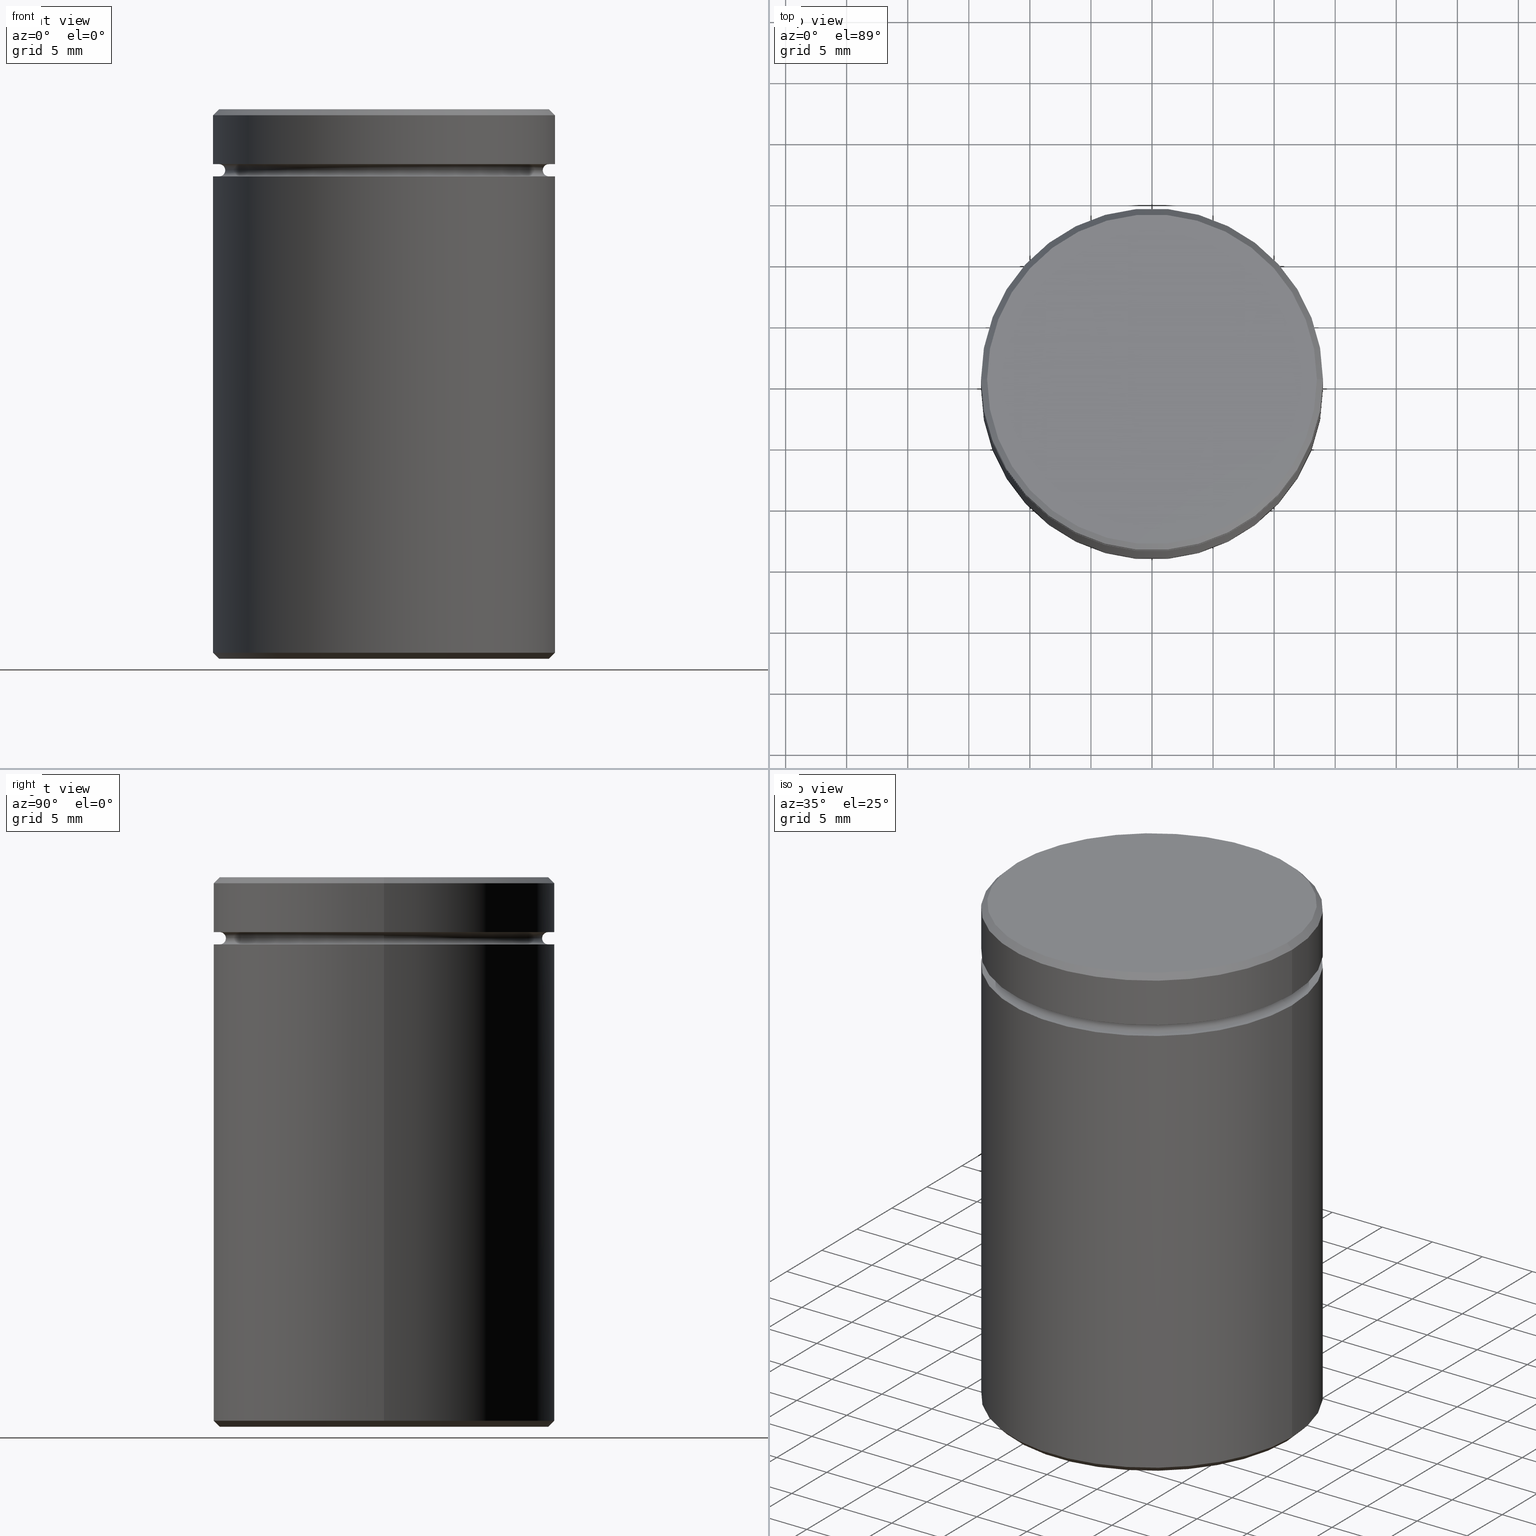
[diagram: canonical four-view strip — front | top / right | iso, engineering-drawing reading convention]
A machine part, canonical four-view strip (front | top / right | iso — engineering-drawing reading convention). The complete STEP part file that produces these views, byte-faithful:
ISO-10303-21;
HEADER;
FILE_DESCRIPTION (( 'STEP AP203' ),
    '1' );
FILE_NAME ('19c1.STEP',
    '2024-01-02T19:36:52',
    ( '' ),
    ( '' ),
    'SwSTEP 2.0',
    'SolidWorks 2019',
    '' );
FILE_SCHEMA (( 'CONFIG_CONTROL_DESIGN' ));
ENDSEC;

DATA;
#1 = CIRCLE ( 'NONE', #318, 14.00000000000000000 ) ;
#2 = TOROIDAL_SURFACE ( 'NONE', #494, 13.50000000000000178, 0.5000000000000000000 ) ;
#3 = CYLINDRICAL_SURFACE ( 'NONE', #127, 14.00000000000000000 ) ;
#4 =( NAMED_UNIT ( * ) PLANE_ANGLE_UNIT ( ) SI_UNIT ( $, .RADIAN. ) );
#5 = CARTESIAN_POINT ( 'NONE',  ( 0.000000000000000000, 0.000000000000000000, 0.000000000000000000 ) ) ;
#6 = EDGE_CURVE ( 'NONE', #114, #529, #120, .T. ) ;
#7 = DIRECTION ( 'NONE',  ( 1.000000000000000000, 0.000000000000000000, 0.000000000000000000 ) ) ;
#8 = ORIENTED_EDGE ( 'NONE', *, *, #394, .T. ) ;
#9 = FACE_OUTER_BOUND ( 'NONE', #364, .T. ) ;
#10 = CIRCLE ( 'NONE', #459, 8.500000000000000000 ) ;
#11 = DIRECTION ( 'NONE',  ( -0.000000000000000000, -0.000000000000000000, 1.000000000000000000 ) ) ;
#12 = CARTESIAN_POINT ( 'NONE',  ( 0.000000000000000000, 0.000000000000000000, -4.500000000000000888 ) ) ;
#13 = DIRECTION ( 'NONE',  ( -1.000000000000000000, 0.000000000000000000, 0.000000000000000000 ) ) ;
#14 = EDGE_CURVE ( 'NONE', #323, #557, #241, .T. ) ;
#15 =( NAMED_UNIT ( * ) SI_UNIT ( $, .STERADIAN. ) SOLID_ANGLE_UNIT ( ) );
#16 = ORIENTED_EDGE ( 'NONE', *, *, #46, .T. ) ;
#17 = PLANE ( 'NONE',  #395 ) ;
#18 = APPLICATION_CONTEXT ( 'configuration controlled 3d designs of mechanical parts and assemblies' ) ;
#19 = CIRCLE ( 'NONE', #294, 14.00000000000000000 ) ;
#20 = ORIENTED_EDGE ( 'NONE', *, *, #73, .F. ) ;
#21 = APPROVAL_ROLE ( '' ) ;
#22 = DIRECTION ( 'NONE',  ( 1.000000000000000000, 0.000000000000000000, 0.000000000000000000 ) ) ;
#23 = ORIENTED_EDGE ( 'NONE', *, *, #126, .T. ) ;
#24 = APPROVAL_ROLE ( '' ) ;
#25 = CARTESIAN_POINT ( 'NONE',  ( 0.000000000000000000, 0.000000000000000000, -44.49999999999999289 ) ) ;
#26 = VERTEX_POINT ( 'NONE', #381 ) ;
#27 = CARTESIAN_POINT ( 'NONE',  ( 0.000000000000000000, 0.000000000000000000, -15.99999999999999645 ) ) ;
#28 = CIRCLE ( 'NONE', #181, 13.50000000000000178 ) ;
#29 = CALENDAR_DATE ( 2024, 2, 1 ) ;
#30 = DIRECTION ( 'NONE',  ( 0.000000000000000000, 0.000000000000000000, -1.000000000000000000 ) ) ;
#31 = EDGE_LOOP ( 'NONE', ( #62, #175, #273, #344 ) ) ;
#32 = CARTESIAN_POINT ( 'NONE',  ( 14.00000000000000000, 0.000000000000000000, -5.500000000000000000 ) ) ;
#33 = PRODUCT_RELATED_PRODUCT_CATEGORY ( 'detail', '', ( #519 ) ) ;
#34 = AXIS2_PLACEMENT_3D ( 'NONE', #281, #92, #266 ) ;
#35 = VECTOR ( 'NONE', #486, 1000.000000000000000 ) ;
#36 = EDGE_CURVE ( 'NONE', #141, #133, #65, .T. ) ;
#37 = DIRECTION ( 'NONE',  ( 1.000000000000000000, 0.000000000000000000, 0.000000000000000000 ) ) ;
#38 = CARTESIAN_POINT ( 'NONE',  ( 0.000000000000000000, 0.000000000000000000, -15.99999999999999645 ) ) ;
#39 = CARTESIAN_POINT ( 'NONE',  ( 0.000000000000000000, 0.000000000000000000, -45.00000000000000000 ) ) ;
#40 = CALENDAR_DATE ( 2024, 2, 1 ) ;
#41 = ORIENTED_EDGE ( 'NONE', *, *, #126, .F. ) ;
#42 = AXIS2_PLACEMENT_3D ( 'NONE', #27, #336, #167 ) ;
#43 = LOCAL_TIME ( 20, 36, 52.00000000000000000, #102 ) ;
#44 = DIRECTION ( 'NONE',  ( 1.000000000000000000, 0.000000000000000000, 0.000000000000000000 ) ) ;
#45 = ORIENTED_EDGE ( 'NONE', *, *, #328, .T. ) ;
#46 = EDGE_CURVE ( 'NONE', #91, #269, #53, .T. ) ;
#47 = LINE ( 'NONE', #271, #470 ) ;
#48 = DIRECTION ( 'NONE',  ( -0.000000000000000000, -0.000000000000000000, 1.000000000000000000 ) ) ;
#49 = VERTEX_POINT ( 'NONE', #535 ) ;
#50 = APPROVAL ( #466, 'NEUR�EN�' ) ;
#51 = FACE_OUTER_BOUND ( 'NONE', #442, .T. ) ;
#52 = DIRECTION ( 'NONE',  ( -1.000000000000000000, 0.000000000000000000, 0.000000000000000000 ) ) ;
#53 = CIRCLE ( 'NONE', #306, 14.00000000000000000 ) ;
#54 = CIRCLE ( 'NONE', #319, 13.49999999999999467 ) ;
#55 = CARTESIAN_POINT ( 'NONE',  ( 0.000000000000000000, 0.000000000000000000, -5.500000000000000000 ) ) ;
#56 = EDGE_CURVE ( 'NONE', #533, #409, #376, .T. ) ;
#57 = FACE_OUTER_BOUND ( 'NONE', #174, .T. ) ;
#58 = ORIENTED_EDGE ( 'NONE', *, *, #198, .T. ) ;
#59 = DIRECTION ( 'NONE',  ( -1.000000000000000000, 0.000000000000000000, 0.000000000000000000 ) ) ;
#60 = VERTEX_POINT ( 'NONE', #485 ) ;
#61 = DIRECTION ( 'NONE',  ( -0.000000000000000000, -0.000000000000000000, 1.000000000000000000 ) ) ;
#62 = ORIENTED_EDGE ( 'NONE', *, *, #6, .F. ) ;
#63 = APPROVAL_STATUS ( 'not_yet_approved' ) ;
#64 = CARTESIAN_POINT ( 'NONE',  ( 0.000000000000000000, 0.000000000000000000, -4.500000000000000888 ) ) ;
#65 = CIRCLE ( 'NONE', #543, 14.00000000000000000 ) ;
#66 = ORIENTED_EDGE ( 'NONE', *, *, #207, .F. ) ;
#67 = CC_DESIGN_APPROVAL ( #50, ( #259 ) ) ;
#68 = CARTESIAN_POINT ( 'NONE',  ( 0.000000000000000000, 0.000000000000000000, -0.5000000000000022204 ) ) ;
#69 = ORIENTED_EDGE ( 'NONE', *, *, #116, .T. ) ;
#70 = PERSON_AND_ORGANIZATION ( #77, #242 ) ;
#71 = CARTESIAN_POINT ( 'NONE',  ( -14.00000000000000000, 1.714505518806294638E-15, 0.000000000000000000 ) ) ;
#72 = FACE_OUTER_BOUND ( 'NONE', #540, .T. ) ;
#73 = EDGE_CURVE ( 'NONE', #323, #114, #523, .T. ) ;
#74 = CIRCLE ( 'NONE', #369, 8.500000000000000000 ) ;
#75 = ORIENTED_EDGE ( 'NONE', *, *, #198, .F. ) ;
#76 = CARTESIAN_POINT ( 'NONE',  ( -13.50000000000000178, 0.000000000000000000, -5.000000000000000888 ) ) ;
#77 = PERSON ( 'NEUR�EN�', 'NEUR�EN�', 'NEUR�EN�', ('NEUR�EN�'), ('NEUR�EN�'), ('NEUR�EN�') ) ;
#78 = FACE_OUTER_BOUND ( 'NONE', #353, .T. ) ;
#79 = DIRECTION ( 'NONE',  ( 1.000000000000000000, 0.000000000000000000, 0.000000000000000000 ) ) ;
#80 = AXIS2_PLACEMENT_3D ( 'NONE', #390, #490, #44 ) ;
#81 = VECTOR ( 'NONE', #115, 1000.000000000000000 ) ;
#82 = LOCAL_TIME ( 20, 36, 52.00000000000000000, #201 ) ;
#83 = LINE ( 'NONE', #254, #156 ) ;
#84 = DIRECTION ( 'NONE',  ( -1.000000000000000000, 0.000000000000000000, 0.000000000000000000 ) ) ;
#85 = DIRECTION ( 'NONE',  ( -1.000000000000000000, 0.000000000000000000, 0.000000000000000000 ) ) ;
#86 = EDGE_LOOP ( 'NONE', ( #66, #263 ) ) ;
#87 = EDGE_CURVE ( 'NONE', #411, #557, #368, .T. ) ;
#88 = DIRECTION ( 'NONE',  ( -0.000000000000000000, -0.000000000000000000, 1.000000000000000000 ) ) ;
#89 = AXIS2_PLACEMENT_3D ( 'NONE', #55, #487, #7 ) ;
#90 = CARTESIAN_POINT ( 'NONE',  ( -13.50000000000000178, 0.000000000000000000, -4.500000000000000888 ) ) ;
#91 = VERTEX_POINT ( 'NONE', #303 ) ;
#92 = DIRECTION ( 'NONE',  ( -0.000000000000000000, -0.000000000000000000, -1.000000000000000000 ) ) ;
#93 = DIRECTION ( 'NONE',  ( 1.000000000000000000, 0.000000000000000000, 0.000000000000000000 ) ) ;
#94 = ORIENTED_EDGE ( 'NONE', *, *, #410, .T. ) ;
#95 = CARTESIAN_POINT ( 'NONE',  ( 0.000000000000000000, 0.000000000000000000, -4.999999999999999112 ) ) ;
#96 = CARTESIAN_POINT ( 'NONE',  ( 13.49999999999999467, 0.000000000000000000, -45.00000000000000000 ) ) ;
#97 = ORIENTED_EDGE ( 'NONE', *, *, #379, .F. ) ;
#98 = CARTESIAN_POINT ( 'NONE',  ( -8.500000000000000000, 0.000000000000000000, -15.99999999999999645 ) ) ;
#99 = AXIS2_PLACEMENT_3D ( 'NONE', #234, #357, #325 ) ;
#100 = DIRECTION ( 'NONE',  ( 1.000000000000000000, 0.000000000000000000, 0.000000000000000000 ) ) ;
#101 = DIRECTION ( 'NONE',  ( 0.000000000000000000, -1.000000000000000000, 0.000000000000000000 ) ) ;
#102 = COORDINATED_UNIVERSAL_TIME_OFFSET ( 1, 0, .AHEAD. ) ;
#103 = CYLINDRICAL_SURFACE ( 'NONE', #146, 14.00000000000000000 ) ;
#104 = ORIENTED_EDGE ( 'NONE', *, *, #315, .F. ) ;
#105 = DIRECTION ( 'NONE',  ( 1.000000000000000000, 0.000000000000000000, 0.000000000000000000 ) ) ;
#106 = EDGE_CURVE ( 'NONE', #496, #49, #47, .T. ) ;
#107 = FACE_OUTER_BOUND ( 'NONE', #213, .T. ) ;
#108 = AXIS2_PLACEMENT_3D ( 'NONE', #517, #477, #84 ) ;
#109 = EDGE_LOOP ( 'NONE', ( #223, #16, #356, #458 ) ) ;
#110 = CIRCLE ( 'NONE', #276, 14.00000000000000000 ) ;
#111 = DATE_AND_TIME ( #553, #564 ) ;
#112 = DIRECTION ( 'NONE',  ( -1.000000000000000000, 0.000000000000000000, 0.000000000000000000 ) ) ;
#113 = EDGE_LOOP ( 'NONE', ( #299, #392, #75, #97 ) ) ;
#114 = VERTEX_POINT ( 'NONE', #225 ) ;
#115 = DIRECTION ( 'NONE',  ( -0.000000000000000000, -0.000000000000000000, 1.000000000000000000 ) ) ;
#116 = EDGE_CURVE ( 'NONE', #133, #49, #526, .T. ) ;
#117 = ORIENTED_EDGE ( 'NONE', *, *, #474, .T. ) ;
#118 = APPLICATION_PROTOCOL_DEFINITION ( 'international standard', 'config_control_design', 1994, #426 ) ;
#119 = DIRECTION ( 'NONE',  ( 1.000000000000000000, 0.000000000000000000, 0.000000000000000000 ) ) ;
#120 = CIRCLE ( 'NONE', #330, 0.5000000000000004441 ) ;
#121 = TOROIDAL_SURFACE ( 'NONE', #377, 13.50000000000000178, 0.5000000000000000000 ) ;
#122 = APPROVAL_PERSON_ORGANIZATION ( #157, #349, #24 ) ;
#123 = DIRECTION ( 'NONE',  ( -0.000000000000000000, -0.000000000000000000, 1.000000000000000000 ) ) ;
#124 = CARTESIAN_POINT ( 'NONE',  ( 0.000000000000000000, 0.000000000000000000, -4.500000000000000888 ) ) ;
#125 = DIRECTION ( 'NONE',  ( 0.000000000000000000, 0.000000000000000000, -1.000000000000000000 ) ) ;
#126 = EDGE_CURVE ( 'NONE', #409, #533, #1, .T. ) ;
#127 = AXIS2_PLACEMENT_3D ( 'NONE', #183, #527, #140 ) ;
#128 = APPROVAL_PERSON_ORGANIZATION ( #455, #480, #21 ) ;
#129 = DIRECTION ( 'NONE',  ( -1.000000000000000000, -1.224646799147353454E-16, 0.000000000000000000 ) ) ;
#130 = DIRECTION ( 'NONE',  ( 1.000000000000000000, 0.000000000000000000, 0.000000000000000000 ) ) ;
#131 = CARTESIAN_POINT ( 'NONE',  ( 0.000000000000000000, 0.000000000000000000, -45.00000000000000000 ) ) ;
#132 = ADVANCED_FACE ( 'NONE', ( #440 ), #339, .F. ) ;
#133 = VERTEX_POINT ( 'NONE', #209 ) ;
#134 = DIRECTION ( 'NONE',  ( -1.000000000000000000, 0.000000000000000000, 0.000000000000000000 ) ) ;
#135 = EDGE_LOOP ( 'NONE', ( #23, #326 ) ) ;
#136 = CIRCLE ( 'NONE', #359, 14.00000000000000000 ) ;
#137 = DIRECTION ( 'NONE',  ( -0.000000000000000000, -0.000000000000000000, 1.000000000000000000 ) ) ;
#138 = EDGE_CURVE ( 'NONE', #552, #26, #436, .T. ) ;
#139 = CARTESIAN_POINT ( 'NONE',  ( 0.000000000000000000, 0.000000000000000000, -45.00000000000000000 ) ) ;
#140 = DIRECTION ( 'NONE',  ( 1.000000000000000000, 0.000000000000000000, 0.000000000000000000 ) ) ;
#141 = VERTEX_POINT ( 'NONE', #435 ) ;
#142 = FACE_BOUND ( 'NONE', #161, .T. ) ;
#143 = LINE ( 'NONE', #308, #35 ) ;
#144 = ORIENTED_EDGE ( 'NONE', *, *, #277, .T. ) ;
#145 = CARTESIAN_POINT ( 'NONE',  ( 0.000000000000000000, 0.000000000000000000, -44.49999999999999289 ) ) ;
#146 = AXIS2_PLACEMENT_3D ( 'NONE', #5, #419, #500 ) ;
#147 = AXIS2_PLACEMENT_3D ( 'NONE', #433, #123, #219 ) ;
#148 = ORIENTED_EDGE ( 'NONE', *, *, #106, .T. ) ;
#149 = FACE_OUTER_BOUND ( 'NONE', #508, .T. ) ;
#150 = ORIENTED_EDGE ( 'NONE', *, *, #307, .F. ) ;
#151 = ADVANCED_FACE ( 'NONE', ( #9 ), #262, .T. ) ;
#152 = CC_DESIGN_PERSON_AND_ORGANIZATION_ASSIGNMENT ( #70, #558, ( #287 ) ) ;
#153 = ORIENTED_EDGE ( 'NONE', *, *, #568, .T. ) ;
#154 = CARTESIAN_POINT ( 'NONE',  ( 0.000000000000000000, 0.000000000000000000, -0.5000000000000022204 ) ) ;
#155 = ORIENTED_EDGE ( 'NONE', *, *, #36, .F. ) ;
#156 = VECTOR ( 'NONE', #431, 1000.000000000000000 ) ;
#157 = PERSON_AND_ORGANIZATION ( #77, #242 ) ;
#158 = LOCAL_TIME ( 20, 36, 52.00000000000000000, #545 ) ;
#159 = FACE_OUTER_BOUND ( 'NONE', #109, .T. ) ;
#160 = ADVANCED_FACE ( 'NONE', ( #311 ), #495, .F. ) ;
#161 = EDGE_LOOP ( 'NONE', ( #348, #313 ) ) ;
#162 = SECURITY_CLASSIFICATION_LEVEL ( 'unclassified' ) ;
#163 = DIRECTION ( 'NONE',  ( -0.000000000000000000, -0.000000000000000000, 1.000000000000000000 ) ) ;
#164 = CC_DESIGN_DATE_AND_TIME_ASSIGNMENT ( #247, #423, ( #450 ) ) ;
#165 = DIRECTION ( 'NONE',  ( -1.000000000000000000, 1.224646799147353454E-16, 0.000000000000000000 ) ) ;
#166 = SHAPE_DEFINITION_REPRESENTATION ( #176, #283 ) ;
#167 = DIRECTION ( 'NONE',  ( -1.000000000000000000, 0.000000000000000000, 0.000000000000000000 ) ) ;
#168 = DIRECTION ( 'NONE',  ( 1.000000000000000000, 0.000000000000000000, 0.000000000000000000 ) ) ;
#169 = CONICAL_SURFACE ( 'NONE', #483, 13.50000000000000533, 0.7853981633974415066 ) ;
#170 =( GEOMETRIC_REPRESENTATION_CONTEXT ( 3 ) GLOBAL_UNCERTAINTY_ASSIGNED_CONTEXT ( ( #420 ) ) GLOBAL_UNIT_ASSIGNED_CONTEXT ( ( #358, #4, #15 ) ) REPRESENTATION_CONTEXT ( 'NONE', 'WORKASPACE' ) );
#171 = DIRECTION ( 'NONE',  ( 0.000000000000000000, -0.000000000000000000, 1.000000000000000000 ) ) ;
#172 = EDGE_CURVE ( 'NONE', #114, #411, #208, .T. ) ;
#173 = CARTESIAN_POINT ( 'NONE',  ( 0.000000000000000000, 14.00000000000000000, -45.00000000000000000 ) ) ;
#174 = EDGE_LOOP ( 'NONE', ( #20, #194, #210, #537 ) ) ;
#175 = ORIENTED_EDGE ( 'NONE', *, *, #290, .T. ) ;
#176 = PRODUCT_DEFINITION_SHAPE ( 'NONE', 'NONE',  #259 ) ;
#177 = CC_DESIGN_DATE_AND_TIME_ASSIGNMENT ( #371, #240, ( #259 ) ) ;
#178 = FACE_OUTER_BOUND ( 'NONE', #314, .T. ) ;
#179 = CARTESIAN_POINT ( 'NONE',  ( 0.000000000000000000, 0.000000000000000000, -44.49999999999999289 ) ) ;
#180 = DIRECTION ( 'NONE',  ( -1.000000000000000000, 0.000000000000000000, 0.000000000000000000 ) ) ;
#181 = AXIS2_PLACEMENT_3D ( 'NONE', #272, #137, #13 ) ;
#182 = DIRECTION ( 'NONE',  ( -1.000000000000000000, 0.000000000000000000, 0.000000000000000000 ) ) ;
#183 = CARTESIAN_POINT ( 'NONE',  ( 0.000000000000000000, 0.000000000000000000, 0.000000000000000000 ) ) ;
#184 = VERTEX_POINT ( 'NONE', #402 ) ;
#185 = CARTESIAN_POINT ( 'NONE',  ( 0.000000000000000000, 0.000000000000000000, 0.000000000000000000 ) ) ;
#186 = AXIS2_PLACEMENT_3D ( 'NONE', #12, #446, #52 ) ;
#187 = DIRECTION ( 'NONE',  ( 0.000000000000000000, 0.000000000000000000, -1.000000000000000000 ) ) ;
#188 = VECTOR ( 'NONE', #204, 1000.000000000000000 ) ;
#189 = EDGE_CURVE ( 'NONE', #195, #439, #279, .T. ) ;
#190 = CARTESIAN_POINT ( 'NONE',  ( -13.50000000000000533, 0.000000000000000000, 0.000000000000000000 ) ) ;
#191 = ORIENTED_EDGE ( 'NONE', *, *, #138, .F. ) ;
#192 = DIRECTION ( 'NONE',  ( -0.000000000000000000, -0.000000000000000000, 1.000000000000000000 ) ) ;
#193 = ORIENTED_EDGE ( 'NONE', *, *, #267, .F. ) ;
#194 = ORIENTED_EDGE ( 'NONE', *, *, #14, .T. ) ;
#195 = VERTEX_POINT ( 'NONE', #98 ) ;
#196 = FACE_OUTER_BOUND ( 'NONE', #135, .T. ) ;
#197 = AXIS2_PLACEMENT_3D ( 'NONE', #39, #224, #182 ) ;
#198 = EDGE_CURVE ( 'NONE', #472, #529, #428, .T. ) ;
#199 = CC_DESIGN_APPROVAL ( #349, ( #287 ) ) ;
#200 = ORIENTED_EDGE ( 'NONE', *, *, #474, .F. ) ;
#201 = COORDINATED_UNIVERSAL_TIME_OFFSET ( 1, 0, .AHEAD. ) ;
#202 = FACE_OUTER_BOUND ( 'NONE', #282, .T. ) ;
#203 = CARTESIAN_POINT ( 'NONE',  ( 13.50000000000000178, 1.653273178848927064E-15, -5.000000000000000888 ) ) ;
#204 = DIRECTION ( 'NONE',  ( -0.000000000000000000, -0.000000000000000000, 1.000000000000000000 ) ) ;
#205 = ORIENTED_EDGE ( 'NONE', *, *, #46, .F. ) ;
#206 = ORIENTED_EDGE ( 'NONE', *, *, #189, .F. ) ;
#207 = EDGE_CURVE ( 'NONE', #439, #361, #10, .T. ) ;
#208 = CIRCLE ( 'NONE', #274, 0.5000000000000004441 ) ;
#209 = CARTESIAN_POINT ( 'NONE',  ( 14.00000000000000000, 0.000000000000000000, -4.500000000000000888 ) ) ;
#210 = ORIENTED_EDGE ( 'NONE', *, *, #87, .F. ) ;
#211 = AXIS2_PLACEMENT_3D ( 'NONE', #569, #125, #346 ) ;
#212 = APPROVAL_ROLE ( '' ) ;
#213 = EDGE_LOOP ( 'NONE', ( #362, #148, #150, #261 ) ) ;
#214 = PERSON_AND_ORGANIZATION ( #77, #242 ) ;
#215 = ORIENTED_EDGE ( 'NONE', *, *, #478, .T. ) ;
#216 = CARTESIAN_POINT ( 'NONE',  ( 0.000000000000000000, 0.000000000000000000, -15.99999999999999645 ) ) ;
#217 = ADVANCED_FACE ( 'NONE', ( #398, #228 ), #538, .T. ) ;
#218 = CIRCLE ( 'NONE', #449, 8.500000000000000000 ) ;
#219 = DIRECTION ( 'NONE',  ( 1.000000000000000000, 0.000000000000000000, 0.000000000000000000 ) ) ;
#220 = ORIENTED_EDGE ( 'NONE', *, *, #429, .F. ) ;
#221 = DIRECTION ( 'NONE',  ( 1.000000000000000000, 0.000000000000000000, 0.000000000000000000 ) ) ;
#222 = ADVANCED_FACE ( 'NONE', ( #142, #196 ), #17, .T. ) ;
#223 = ORIENTED_EDGE ( 'NONE', *, *, #277, .F. ) ;
#224 = DIRECTION ( 'NONE',  ( 0.000000000000000000, 0.000000000000000000, -1.000000000000000000 ) ) ;
#225 = CARTESIAN_POINT ( 'NONE',  ( 13.00000000000000178, 0.000000000000000000, -4.999999999999999112 ) ) ;
#226 = CARTESIAN_POINT ( 'NONE',  ( 0.000000000000000000, 0.000000000000000000, -4.999999999999999112 ) ) ;
#227 = VERTEX_POINT ( 'NONE', #275 ) ;
#228 = FACE_OUTER_BOUND ( 'NONE', #317, .T. ) ;
#229 = DIRECTION ( 'NONE',  ( 1.000000000000000000, 0.000000000000000000, 0.000000000000000000 ) ) ;
#230 = ADVANCED_FACE ( 'NONE', ( #149 ), #451, .T. ) ;
#231 = DIRECTION ( 'NONE',  ( 0.000000000000000000, 0.000000000000000000, -1.000000000000000000 ) ) ;
#232 = CIRCLE ( 'NONE', #460, 8.500000000000000000 ) ;
#233 = CARTESIAN_POINT ( 'NONE',  ( 0.000000000000000000, 0.000000000000000000, -5.000000000000000888 ) ) ;
#234 = CARTESIAN_POINT ( 'NONE',  ( 0.000000000000000000, 0.000000000000000000, -15.99999999999999645 ) ) ;
#235 = ORIENTED_EDGE ( 'NONE', *, *, #246, .F. ) ;
#236 = ORIENTED_EDGE ( 'NONE', *, *, #418, .T. ) ;
#237 = ADVANCED_FACE ( 'NONE', ( #499 ), #103, .T. ) ;
#238 = CARTESIAN_POINT ( 'NONE',  ( 0.000000000000000000, 14.00000000000000000, -4.500000000000000888 ) ) ;
#239 = ORIENTED_EDGE ( 'NONE', *, *, #307, .T. ) ;
#240 = DATE_TIME_ROLE ( 'creation_date' ) ;
#241 = CIRCLE ( 'NONE', #492, 0.5000000000000004441 ) ;
#242 = ORGANIZATION ( 'NEUR�EN�', 'NEUR�EN�', '' ) ;
#243 = ORIENTED_EDGE ( 'NONE', *, *, #410, .F. ) ;
#244 = PERSON_AND_ORGANIZATION_ROLE ( 'creator' ) ;
#245 = CARTESIAN_POINT ( 'NONE',  ( 0.000000000000000000, 0.000000000000000000, -45.00000000000000000 ) ) ;
#246 = EDGE_CURVE ( 'NONE', #49, #60, #384, .T. ) ;
#247 = DATE_AND_TIME ( #251, #158 ) ;
#248 = ORIENTED_EDGE ( 'NONE', *, *, #290, .F. ) ;
#249 = PERSON_AND_ORGANIZATION ( #77, #242 ) ;
#250 = AXIS2_PLACEMENT_3D ( 'NONE', #493, #88, #100 ) ;
#251 = CALENDAR_DATE ( 2024, 2, 1 ) ;
#252 = LINE ( 'NONE', #71, #81 ) ;
#253 = ORIENTED_EDGE ( 'NONE', *, *, #207, .T. ) ;
#254 = CARTESIAN_POINT ( 'NONE',  ( 14.00000000000000000, 0.000000000000000000, -44.49999999999999289 ) ) ;
#255 = ADVANCED_FACE ( 'NONE', ( #107 ), #169, .T. ) ;
#256 = AXIS2_PLACEMENT_3D ( 'NONE', #536, #231, #134 ) ;
#257 = LINE ( 'NONE', #302, #286 ) ;
#258 = CARTESIAN_POINT ( 'NONE',  ( 13.50000000000000178, 0.000000000000000000, -5.500000000000000000 ) ) ;
#259 = PRODUCT_DEFINITION ( 'NEZN�M�', '', #287, #551 ) ;
#260 = CARTESIAN_POINT ( 'NONE',  ( -8.500000000000000000, 0.000000000000000000, -45.00000000000000000 ) ) ;
#261 = ORIENTED_EDGE ( 'NONE', *, *, #497, .F. ) ;
#262 = CONICAL_SURFACE ( 'NONE', #447, 14.00000000000000000, 0.7853981633974466137 ) ;
#263 = ORIENTED_EDGE ( 'NONE', *, *, #328, .F. ) ;
#264 = CIRCLE ( 'NONE', #301, 13.00000000000000178 ) ;
#265 = DIRECTION ( 'NONE',  ( -0.7071067811865426878, 0.000000000000000000, -0.7071067811865524577 ) ) ;
#266 = DIRECTION ( 'NONE',  ( -1.000000000000000000, 0.000000000000000000, 0.000000000000000000 ) ) ;
#267 = EDGE_CURVE ( 'NONE', #269, #91, #19, .T. ) ;
#268 = FACE_OUTER_BOUND ( 'NONE', #113, .T. ) ;
#269 = VERTEX_POINT ( 'NONE', #457 ) ;
#270 = CARTESIAN_POINT ( 'NONE',  ( 13.50000000000000178, 0.000000000000000000, -4.999999999999999112 ) ) ;
#271 = CARTESIAN_POINT ( 'NONE',  ( 13.50000000000000533, 1.653273178848927458E-15, 0.000000000000000000 ) ) ;
#272 = CARTESIAN_POINT ( 'NONE',  ( 0.000000000000000000, 0.000000000000000000, -4.500000000000000888 ) ) ;
#273 = ORIENTED_EDGE ( 'NONE', *, *, #379, .T. ) ;
#274 = AXIS2_PLACEMENT_3D ( 'NONE', #270, #101, #187 ) ;
#275 = CARTESIAN_POINT ( 'NONE',  ( 8.500000000000000000, 1.040949779275249943E-15, -15.99999999999999645 ) ) ;
#276 = AXIS2_PLACEMENT_3D ( 'NONE', #64, #514, #22 ) ;
#277 = EDGE_CURVE ( 'NONE', #91, #533, #372, .T. ) ;
#278 = CARTESIAN_POINT ( 'NONE',  ( -14.00000000000000000, 1.714505518806294638E-15, -5.500000000000000000 ) ) ;
#279 = LINE ( 'NONE', #530, #407 ) ;
#280 = ORIENTED_EDGE ( 'NONE', *, *, #14, .F. ) ;
#281 = CARTESIAN_POINT ( 'NONE',  ( 0.000000000000000000, 0.000000000000000000, -15.99999999999999645 ) ) ;
#282 = EDGE_LOOP ( 'NONE', ( #434, #8, #193, #243 ) ) ;
#283 = ADVANCED_BREP_SHAPE_REPRESENTATION ( '19c1', ( #541, #385 ), #170 ) ;
#284 = DIRECTION ( 'NONE',  ( -0.000000000000000000, -0.000000000000000000, 1.000000000000000000 ) ) ;
#285 = AXIS2_PLACEMENT_3D ( 'NONE', #95, #192, #130 ) ;
#286 = VECTOR ( 'NONE', #427, 1000.000000000000000 ) ;
#287 = PRODUCT_DEFINITION_FORMATION_WITH_SPECIFIED_SOURCE ( 'LIBOVOLN�', '', #519, .NOT_KNOWN. ) ;
#288 = ORIENTED_EDGE ( 'NONE', *, *, #116, .F. ) ;
#289 = DATE_AND_TIME ( #29, #321 ) ;
#290 = EDGE_CURVE ( 'NONE', #114, #323, #264, .T. ) ;
#291 = APPROVAL_DATE_TIME ( #111, #50 ) ;
#292 = COORDINATED_UNIVERSAL_TIME_OFFSET ( 1, 0, .AHEAD. ) ;
#293 = AXIS2_PLACEMENT_3D ( 'NONE', #154, #413, #467 ) ;
#294 = AXIS2_PLACEMENT_3D ( 'NONE', #25, #284, #112 ) ;
#295 = ADVANCED_FACE ( 'NONE', ( #159 ), #469, .T. ) ;
#296 = DIRECTION ( 'NONE',  ( 0.000000000000000000, 0.000000000000000000, -1.000000000000000000 ) ) ;
#297 = DIRECTION ( 'NONE',  ( -0.000000000000000000, -0.000000000000000000, 1.000000000000000000 ) ) ;
#298 = DIRECTION ( 'NONE',  ( -1.000000000000000000, 0.000000000000000000, -0.000000000000000000 ) ) ;
#299 = ORIENTED_EDGE ( 'NONE', *, *, #73, .T. ) ;
#300 = ADVANCED_FACE ( 'NONE', ( #72 ), #504, .F. ) ;
#301 = AXIS2_PLACEMENT_3D ( 'NONE', #559, #163, #560 ) ;
#302 = CARTESIAN_POINT ( 'NONE',  ( -14.00000000000000000, 1.714505518806294638E-15, -44.49999999999999289 ) ) ;
#303 = CARTESIAN_POINT ( 'NONE',  ( -14.00000000000000000, 1.714505518806294638E-15, -44.49999999999999289 ) ) ;
#304 = DIRECTION ( 'NONE',  ( -1.000000000000000000, 0.000000000000000000, 0.000000000000000000 ) ) ;
#305 = CARTESIAN_POINT ( 'NONE',  ( 14.00000000000000000, 0.000000000000000000, 0.000000000000000000 ) ) ;
#306 = AXIS2_PLACEMENT_3D ( 'NONE', #179, #422, #511 ) ;
#307 = EDGE_CURVE ( 'NONE', #60, #49, #136, .T. ) ;
#308 = CARTESIAN_POINT ( 'NONE',  ( 8.500000000000000000, 1.040949779275249943E-15, -15.99999999999999645 ) ) ;
#309 = EDGE_LOOP ( 'NONE', ( #417, #220, #365, #253 ) ) ;
#310 = APPROVAL_PERSON_ORGANIZATION ( #249, #50, #212 ) ;
#311 = FACE_OUTER_BOUND ( 'NONE', #309, .T. ) ;
#312 = LINE ( 'NONE', #190, #484 ) ;
#313 = ORIENTED_EDGE ( 'NONE', *, *, #373, .T. ) ;
#314 = EDGE_LOOP ( 'NONE', ( #482, #236 ) ) ;
#315 = EDGE_CURVE ( 'NONE', #141, #60, #252, .T. ) ;
#316 = LINE ( 'NONE', #448, #397 ) ;
#317 = EDGE_LOOP ( 'NONE', ( #370, #155 ) ) ;
#318 = AXIS2_PLACEMENT_3D ( 'NONE', #562, #388, #168 ) ;
#319 = AXIS2_PLACEMENT_3D ( 'NONE', #131, #375, #304 ) ;
#320 = DIRECTION ( 'NONE',  ( -0.000000000000000000, -0.000000000000000000, 1.000000000000000000 ) ) ;
#321 = LOCAL_TIME ( 20, 36, 52.00000000000000000, #498 ) ;
#322 = CC_DESIGN_PERSON_AND_ORGANIZATION_ASSIGNMENT ( #502, #366, ( #519 ) ) ;
#323 = VERTEX_POINT ( 'NONE', #461 ) ;
#324 = EDGE_LOOP ( 'NONE', ( #280, #248, #374, #383 ) ) ;
#325 = DIRECTION ( 'NONE',  ( -1.000000000000000000, 0.000000000000000000, -0.000000000000000000 ) ) ;
#326 = ORIENTED_EDGE ( 'NONE', *, *, #56, .T. ) ;
#327 = DIRECTION ( 'NONE',  ( 0.000000000000000000, 0.000000000000000000, 1.000000000000000000 ) ) ;
#328 = EDGE_CURVE ( 'NONE', #361, #439, #232, .T. ) ;
#329 = DIRECTION ( 'NONE',  ( -0.000000000000000000, -0.000000000000000000, 1.000000000000000000 ) ) ;
#330 = AXIS2_PLACEMENT_3D ( 'NONE', #203, #550, #129 ) ;
#331 = AXIS2_PLACEMENT_3D ( 'NONE', #539, #11, #229 ) ;
#332 = ORIENTED_EDGE ( 'NONE', *, *, #497, .T. ) ;
#333 = PERSON_AND_ORGANIZATION_ROLE ( 'creator' ) ;
#334 = CARTESIAN_POINT ( 'NONE',  ( 0.000000000000000000, 0.000000000000000000, 0.000000000000000000 ) ) ;
#335 = PERSON_AND_ORGANIZATION ( #77, #242 ) ;
#336 = DIRECTION ( 'NONE',  ( -0.000000000000000000, -0.000000000000000000, -1.000000000000000000 ) ) ;
#337 = EDGE_CURVE ( 'NONE', #133, #141, #110, .T. ) ;
#338 = DIRECTION ( 'NONE',  ( -1.000000000000000000, 0.000000000000000000, 0.000000000000000000 ) ) ;
#339 = TOROIDAL_SURFACE ( 'NONE', #108, 13.50000000000000178, 0.5000000000000000000 ) ;
#340 = AXIS2_PLACEMENT_3D ( 'NONE', #173, #296, #298 ) ;
#341 = DIRECTION ( 'NONE',  ( -0.000000000000000000, -1.000000000000000000, -0.000000000000000000 ) ) ;
#342 = ADVANCED_FACE ( 'NONE', ( #202 ), #345, .T. ) ;
#343 = FACE_BOUND ( 'NONE', #86, .T. ) ;
#344 = ORIENTED_EDGE ( 'NONE', *, *, #478, .F. ) ;
#345 = CONICAL_SURFACE ( 'NONE', #147, 14.00000000000000000, 0.7853981633974466137 ) ;
#346 = DIRECTION ( 'NONE',  ( 1.000000000000000000, 0.000000000000000000, 0.000000000000000000 ) ) ;
#347 = ADVANCED_FACE ( 'NONE', ( #78 ), #425, .T. ) ;
#348 = ORIENTED_EDGE ( 'NONE', *, *, #87, .T. ) ;
#349 = APPROVAL ( #548, 'NEUR�EN�' ) ;
#350 = DIRECTION ( 'NONE',  ( -0.000000000000000000, -0.000000000000000000, 1.000000000000000000 ) ) ;
#351 = CC_DESIGN_APPROVAL ( #480, ( #450 ) ) ;
#352 = CARTESIAN_POINT ( 'NONE',  ( 13.50000000000000178, 1.653273178848927064E-15, -4.500000000000000888 ) ) ;
#353 = EDGE_LOOP ( 'NONE', ( #117, #153 ) ) ;
#354 = EDGE_CURVE ( 'NONE', #227, #195, #218, .T. ) ;
#355 = CARTESIAN_POINT ( 'NONE',  ( -13.50000000000000178, 1.653273178848927064E-15, -5.500000000000000000 ) ) ;
#356 = ORIENTED_EDGE ( 'NONE', *, *, #561, .T. ) ;
#357 = DIRECTION ( 'NONE',  ( 0.000000000000000000, 0.000000000000000000, -1.000000000000000000 ) ) ;
#358 =( LENGTH_UNIT ( ) NAMED_UNIT ( * ) SI_UNIT ( .MILLI., .METRE. ) );
#359 = AXIS2_PLACEMENT_3D ( 'NONE', #68, #463, #119 ) ;
#360 = DIRECTION ( 'NONE',  ( 1.000000000000000000, 0.000000000000000000, 0.000000000000000000 ) ) ;
#361 = VERTEX_POINT ( 'NONE', #380 ) ;
#362 = ORIENTED_EDGE ( 'NONE', *, *, #568, .F. ) ;
#363 = ADVANCED_FACE ( 'NONE', ( #476 ), #555, .F. ) ;
#364 = EDGE_LOOP ( 'NONE', ( #415, #191, #94, #205 ) ) ;
#365 = ORIENTED_EDGE ( 'NONE', *, *, #189, .T. ) ;
#366 = PERSON_AND_ORGANIZATION_ROLE ( 'design_owner' ) ;
#367 = CARTESIAN_POINT ( 'NONE',  ( 0.000000000000000000, 0.000000000000000000, 0.000000000000000000 ) ) ;
#368 = CIRCLE ( 'NONE', #89, 13.50000000000000178 ) ;
#369 = AXIS2_PLACEMENT_3D ( 'NONE', #216, #479, #85 ) ;
#370 = ORIENTED_EDGE ( 'NONE', *, *, #337, .F. ) ;
#371 = DATE_AND_TIME ( #412, #43 ) ;
#372 = LINE ( 'NONE', #556, #188 ) ;
#373 = EDGE_CURVE ( 'NONE', #557, #411, #531, .T. ) ;
#374 = ORIENTED_EDGE ( 'NONE', *, *, #172, .T. ) ;
#375 = DIRECTION ( 'NONE',  ( 0.000000000000000000, 0.000000000000000000, -1.000000000000000000 ) ) ;
#376 = CIRCLE ( 'NONE', #80, 14.00000000000000000 ) ;
#377 = AXIS2_PLACEMENT_3D ( 'NONE', #233, #528, #444 ) ;
#378 = DIRECTION ( 'NONE',  ( 1.224646799147353207E-16, 1.000000000000000000, 0.000000000000000000 ) ) ;
#379 = EDGE_CURVE ( 'NONE', #323, #472, #430, .T. ) ;
#380 = CARTESIAN_POINT ( 'NONE',  ( 8.500000000000000000, 1.040949779275249943E-15, -45.00000000000000000 ) ) ;
#381 = CARTESIAN_POINT ( 'NONE',  ( -13.49999999999999467, 1.683889348827610456E-15, -45.00000000000000000 ) ) ;
#382 = DIRECTION ( 'NONE',  ( -0.000000000000000000, -0.000000000000000000, 1.000000000000000000 ) ) ;
#383 = ORIENTED_EDGE ( 'NONE', *, *, #373, .F. ) ;
#384 = CIRCLE ( 'NONE', #293, 14.00000000000000000 ) ;
#385 = AXIS2_PLACEMENT_3D ( 'NONE', #185, #327, #105 ) ;
#386 = CC_DESIGN_SECURITY_CLASSIFICATION ( #450, ( #287 ) ) ;
#387 = FACE_OUTER_BOUND ( 'NONE', #454, .T. ) ;
#388 = DIRECTION ( 'NONE',  ( -0.000000000000000000, -0.000000000000000000, 1.000000000000000000 ) ) ;
#389 = ADVANCED_FACE ( 'NONE', ( #178, #343 ), #522, .T. ) ;
#390 = CARTESIAN_POINT ( 'NONE',  ( 0.000000000000000000, 0.000000000000000000, -5.500000000000000000 ) ) ;
#391 = CARTESIAN_POINT ( 'NONE',  ( 0.000000000000000000, 0.000000000000000000, -4.999999999999999112 ) ) ;
#392 = ORIENTED_EDGE ( 'NONE', *, *, #6, .T. ) ;
#393 = DIRECTION ( 'NONE',  ( 0.000000000000000000, -0.000000000000000000, 1.000000000000000000 ) ) ;
#394 = EDGE_CURVE ( 'NONE', #26, #91, #257, .T. ) ;
#395 = AXIS2_PLACEMENT_3D ( 'NONE', #491, #393, #443 ) ;
#396 = CYLINDRICAL_SURFACE ( 'NONE', #331, 14.00000000000000000 ) ;
#397 = VECTOR ( 'NONE', #48, 1000.000000000000000 ) ;
#398 = FACE_BOUND ( 'NONE', #405, .T. ) ;
#399 = DIRECTION ( 'NONE',  ( 0.7071067811865426878, 8.659560562354873694E-17, -0.7071067811865524577 ) ) ;
#400 = CARTESIAN_POINT ( 'NONE',  ( 13.50000000000000533, 1.683889348827611048E-15, 0.000000000000000000 ) ) ;
#401 = ORIENTED_EDGE ( 'NONE', *, *, #315, .T. ) ;
#402 = CARTESIAN_POINT ( 'NONE',  ( -13.50000000000000533, 0.000000000000000000, 0.000000000000000000 ) ) ;
#403 = ORIENTED_EDGE ( 'NONE', *, *, #267, .T. ) ;
#404 = DIRECTION ( 'NONE',  ( 0.000000000000000000, 0.000000000000000000, -1.000000000000000000 ) ) ;
#405 = EDGE_LOOP ( 'NONE', ( #58, #215 ) ) ;
#406 = MECHANICAL_CONTEXT ( 'NONE', #18, 'mechanical' ) ;
#407 = VECTOR ( 'NONE', #534, 1000.000000000000000 ) ;
#408 = CIRCLE ( 'NONE', #503, 13.50000000000000533 ) ;
#409 = VERTEX_POINT ( 'NONE', #32 ) ;
#410 = EDGE_CURVE ( 'NONE', #552, #269, #83, .T. ) ;
#411 = VERTEX_POINT ( 'NONE', #258 ) ;
#412 = CALENDAR_DATE ( 2024, 2, 1 ) ;
#413 = DIRECTION ( 'NONE',  ( 0.000000000000000000, 0.000000000000000000, -1.000000000000000000 ) ) ;
#414 = ORIENTED_EDGE ( 'NONE', *, *, #561, .F. ) ;
#415 = ORIENTED_EDGE ( 'NONE', *, *, #394, .F. ) ;
#416 = DIRECTION ( 'NONE',  ( -1.000000000000000000, 0.000000000000000000, 0.000000000000000000 ) ) ;
#417 = ORIENTED_EDGE ( 'NONE', *, *, #464, .F. ) ;
#418 = EDGE_CURVE ( 'NONE', #26, #552, #54, .T. ) ;
#419 = DIRECTION ( 'NONE',  ( -0.000000000000000000, -0.000000000000000000, 1.000000000000000000 ) ) ;
#420 = UNCERTAINTY_MEASURE_WITH_UNIT (LENGTH_MEASURE( 1.000000000000000082E-05 ), #358, 'distance_accuracy_value', 'NONE');
#421 = AXIS2_PLACEMENT_3D ( 'NONE', #226, #382, #79 ) ;
#422 = DIRECTION ( 'NONE',  ( -0.000000000000000000, -0.000000000000000000, 1.000000000000000000 ) ) ;
#423 = DATE_TIME_ROLE ( 'classification_date' ) ;
#424 = ORIENTED_EDGE ( 'NONE', *, *, #464, .T. ) ;
#425 = PLANE ( 'NONE',  #544 ) ;
#426 = APPLICATION_CONTEXT ( 'configuration controlled 3d designs of mechanical parts and assemblies' ) ;
#427 = DIRECTION ( 'NONE',  ( -0.7071067811865463515, 8.659560562354918067E-17, 0.7071067811865487940 ) ) ;
#428 = CIRCLE ( 'NONE', #186, 13.50000000000000178 ) ;
#429 = EDGE_CURVE ( 'NONE', #195, #227, #74, .T. ) ;
#430 = CIRCLE ( 'NONE', #437, 0.5000000000000004441 ) ;
#431 = DIRECTION ( 'NONE',  ( 0.7071067811865463515, 0.000000000000000000, 0.7071067811865487940 ) ) ;
#432 = CC_DESIGN_PERSON_AND_ORGANIZATION_ASSIGNMENT ( #335, #468, ( #450 ) ) ;
#433 = CARTESIAN_POINT ( 'NONE',  ( 0.000000000000000000, 0.000000000000000000, -44.49999999999999289 ) ) ;
#434 = ORIENTED_EDGE ( 'NONE', *, *, #418, .F. ) ;
#435 = CARTESIAN_POINT ( 'NONE',  ( -14.00000000000000000, 1.714505518806294638E-15, -4.500000000000000888 ) ) ;
#436 = CIRCLE ( 'NONE', #197, 13.49999999999999467 ) ;
#437 = AXIS2_PLACEMENT_3D ( 'NONE', #76, #341, #524 ) ;
#438 = APPLICATION_PROTOCOL_DEFINITION ( 'international standard', 'config_control_design', 1994, #18 ) ;
#439 = VERTEX_POINT ( 'NONE', #260 ) ;
#440 = FACE_OUTER_BOUND ( 'NONE', #31, .T. ) ;
#441 = DIRECTION ( 'NONE',  ( -0.000000000000000000, -0.000000000000000000, 1.000000000000000000 ) ) ;
#442 = EDGE_LOOP ( 'NONE', ( #104, #567, #69, #489 ) ) ;
#443 = DIRECTION ( 'NONE',  ( 1.000000000000000000, 0.000000000000000000, 0.000000000000000000 ) ) ;
#444 = DIRECTION ( 'NONE',  ( -1.000000000000000000, 0.000000000000000000, 0.000000000000000000 ) ) ;
#445 = EDGE_LOOP ( 'NONE', ( #473, #401, #239, #288 ) ) ;
#446 = DIRECTION ( 'NONE',  ( -0.000000000000000000, -0.000000000000000000, 1.000000000000000000 ) ) ;
#447 = AXIS2_PLACEMENT_3D ( 'NONE', #145, #320, #360 ) ;
#448 = CARTESIAN_POINT ( 'NONE',  ( 14.00000000000000000, 0.000000000000000000, 0.000000000000000000 ) ) ;
#449 = AXIS2_PLACEMENT_3D ( 'NONE', #38, #520, #180 ) ;
#450 = SECURITY_CLASSIFICATION ( '', '', #162 ) ;
#451 = PLANE ( 'NONE',  #99 ) ;
#452 = DIRECTION ( 'NONE',  ( 1.000000000000000000, 0.000000000000000000, 0.000000000000000000 ) ) ;
#453 = DIRECTION ( 'NONE',  ( 0.000000000000000000, 0.000000000000000000, -1.000000000000000000 ) ) ;
#454 = EDGE_LOOP ( 'NONE', ( #403, #144, #41, #414 ) ) ;
#455 = PERSON_AND_ORGANIZATION ( #77, #242 ) ;
#456 = ADVANCED_FACE ( 'NONE', ( #387 ), #3, .T. ) ;
#457 = CARTESIAN_POINT ( 'NONE',  ( 14.00000000000000000, 0.000000000000000000, -44.49999999999999289 ) ) ;
#458 = ORIENTED_EDGE ( 'NONE', *, *, #56, .F. ) ;
#459 = AXIS2_PLACEMENT_3D ( 'NONE', #139, #453, #59 ) ;
#460 = AXIS2_PLACEMENT_3D ( 'NONE', #245, #30, #338 ) ;
#461 = CARTESIAN_POINT ( 'NONE',  ( -13.00000000000000178, 1.622657008870243277E-15, -4.999999999999999112 ) ) ;
#462 = APPROVAL_DATE_TIME ( #289, #349 ) ;
#463 = DIRECTION ( 'NONE',  ( 0.000000000000000000, 0.000000000000000000, -1.000000000000000000 ) ) ;
#464 = EDGE_CURVE ( 'NONE', #227, #361, #143, .T. ) ;
#465 = ORIENTED_EDGE ( 'NONE', *, *, #106, .F. ) ;
#466 = APPROVAL_STATUS ( 'not_yet_approved' ) ;
#467 = DIRECTION ( 'NONE',  ( 1.000000000000000000, 0.000000000000000000, 0.000000000000000000 ) ) ;
#468 = PERSON_AND_ORGANIZATION_ROLE ( 'classification_officer' ) ;
#469 = CYLINDRICAL_SURFACE ( 'NONE', #475, 14.00000000000000000 ) ;
#470 = VECTOR ( 'NONE', #399, 1000.000000000000000 ) ;
#471 = CIRCLE ( 'NONE', #250, 13.50000000000000533 ) ;
#472 = VERTEX_POINT ( 'NONE', #90 ) ;
#473 = ORIENTED_EDGE ( 'NONE', *, *, #337, .T. ) ;
#474 = EDGE_CURVE ( 'NONE', #184, #496, #408, .T. ) ;
#475 = AXIS2_PLACEMENT_3D ( 'NONE', #334, #329, #510 ) ;
#476 = FACE_OUTER_BOUND ( 'NONE', #324, .T. ) ;
#477 = DIRECTION ( 'NONE',  ( 0.000000000000000000, 0.000000000000000000, -1.000000000000000000 ) ) ;
#478 = EDGE_CURVE ( 'NONE', #529, #472, #28, .T. ) ;
#479 = DIRECTION ( 'NONE',  ( 0.000000000000000000, 0.000000000000000000, -1.000000000000000000 ) ) ;
#480 = APPROVAL ( #63, 'NEUR�EN�' ) ;
#481 = CARTESIAN_POINT ( 'NONE',  ( 0.000000000000000000, 0.000000000000000000, 0.000000000000000000 ) ) ;
#482 = ORIENTED_EDGE ( 'NONE', *, *, #138, .T. ) ;
#483 = AXIS2_PLACEMENT_3D ( 'NONE', #367, #549, #416 ) ;
#484 = VECTOR ( 'NONE', #265, 1000.000000000000000 ) ;
#485 = CARTESIAN_POINT ( 'NONE',  ( -14.00000000000000000, 1.714505518806294638E-15, -0.5000000000000022204 ) ) ;
#486 = DIRECTION ( 'NONE',  ( -0.000000000000000000, -0.000000000000000000, -1.000000000000000000 ) ) ;
#487 = DIRECTION ( 'NONE',  ( 0.000000000000000000, 0.000000000000000000, -1.000000000000000000 ) ) ;
#488 = FACE_OUTER_BOUND ( 'NONE', #506, .T. ) ;
#489 = ORIENTED_EDGE ( 'NONE', *, *, #246, .T. ) ;
#490 = DIRECTION ( 'NONE',  ( -0.000000000000000000, -0.000000000000000000, 1.000000000000000000 ) ) ;
#491 = CARTESIAN_POINT ( 'NONE',  ( 0.000000000000000000, 13.00000000000000178, -5.500000000000000000 ) ) ;
#492 = AXIS2_PLACEMENT_3D ( 'NONE', #521, #378, #165 ) ;
#493 = CARTESIAN_POINT ( 'NONE',  ( 0.000000000000000000, 0.000000000000000000, 0.000000000000000000 ) ) ;
#494 = AXIS2_PLACEMENT_3D ( 'NONE', #391, #441, #452 ) ;
#495 = CYLINDRICAL_SURFACE ( 'NONE', #34, 8.500000000000000000 ) ;
#496 = VERTEX_POINT ( 'NONE', #400 ) ;
#497 = EDGE_CURVE ( 'NONE', #184, #60, #312, .T. ) ;
#498 = COORDINATED_UNIVERSAL_TIME_OFFSET ( 1, 0, .AHEAD. ) ;
#499 = FACE_OUTER_BOUND ( 'NONE', #445, .T. ) ;
#500 = DIRECTION ( 'NONE',  ( 1.000000000000000000, 0.000000000000000000, 0.000000000000000000 ) ) ;
#501 = ORIENTED_EDGE ( 'NONE', *, *, #429, .T. ) ;
#502 = PERSON_AND_ORGANIZATION ( #77, #242 ) ;
#503 = AXIS2_PLACEMENT_3D ( 'NONE', #481, #350, #93 ) ;
#504 = CYLINDRICAL_SURFACE ( 'NONE', #42, 8.500000000000000000 ) ;
#505 = ADVANCED_FACE ( 'NONE', ( #57 ), #2, .F. ) ;
#506 = EDGE_LOOP ( 'NONE', ( #465, #200, #332, #235 ) ) ;
#507 = CC_DESIGN_PERSON_AND_ORGANIZATION_ASSIGNMENT ( #214, #333, ( #287 ) ) ;
#508 = EDGE_LOOP ( 'NONE', ( #501, #513 ) ) ;
#509 = PERSON_AND_ORGANIZATION ( #77, #242 ) ;
#510 = DIRECTION ( 'NONE',  ( 1.000000000000000000, 0.000000000000000000, 0.000000000000000000 ) ) ;
#511 = DIRECTION ( 'NONE',  ( -1.000000000000000000, 0.000000000000000000, 0.000000000000000000 ) ) ;
#512 = DATE_AND_TIME ( #40, #82 ) ;
#513 = ORIENTED_EDGE ( 'NONE', *, *, #354, .T. ) ;
#514 = DIRECTION ( 'NONE',  ( -0.000000000000000000, -0.000000000000000000, 1.000000000000000000 ) ) ;
#515 = AXIS2_PLACEMENT_3D ( 'NONE', #238, #404, #546 ) ;
#516 = CONICAL_SURFACE ( 'NONE', #256, 13.50000000000000533, 0.7853981633974415066 ) ;
#517 = CARTESIAN_POINT ( 'NONE',  ( 0.000000000000000000, 0.000000000000000000, -5.000000000000000888 ) ) ;
#518 = ADVANCED_FACE ( 'NONE', ( #268 ), #121, .F. ) ;
#519 = PRODUCT ( '19c1', '19c1', '', ( #406 ) ) ;
#520 = DIRECTION ( 'NONE',  ( 0.000000000000000000, 0.000000000000000000, -1.000000000000000000 ) ) ;
#521 = CARTESIAN_POINT ( 'NONE',  ( -13.50000000000000178, 1.653273178848927064E-15, -4.999999999999999112 ) ) ;
#522 = PLANE ( 'NONE',  #340 ) ;
#523 = CIRCLE ( 'NONE', #285, 13.00000000000000178 ) ;
#524 = DIRECTION ( 'NONE',  ( 0.000000000000000000, 0.000000000000000000, -1.000000000000000000 ) ) ;
#525 = CC_DESIGN_PERSON_AND_ORGANIZATION_ASSIGNMENT ( #509, #244, ( #259 ) ) ;
#526 = LINE ( 'NONE', #305, #563 ) ;
#527 = DIRECTION ( 'NONE',  ( -0.000000000000000000, -0.000000000000000000, 1.000000000000000000 ) ) ;
#528 = DIRECTION ( 'NONE',  ( 0.000000000000000000, 0.000000000000000000, -1.000000000000000000 ) ) ;
#529 = VERTEX_POINT ( 'NONE', #352 ) ;
#530 = CARTESIAN_POINT ( 'NONE',  ( -8.500000000000000000, 0.000000000000000000, -15.99999999999999645 ) ) ;
#531 = CIRCLE ( 'NONE', #211, 13.50000000000000178 ) ;
#532 = ADVANCED_FACE ( 'NONE', ( #488 ), #516, .T. ) ;
#533 = VERTEX_POINT ( 'NONE', #278 ) ;
#534 = DIRECTION ( 'NONE',  ( -0.000000000000000000, -0.000000000000000000, -1.000000000000000000 ) ) ;
#535 = CARTESIAN_POINT ( 'NONE',  ( 14.00000000000000000, 0.000000000000000000, -0.5000000000000022204 ) ) ;
#536 = CARTESIAN_POINT ( 'NONE',  ( 0.000000000000000000, 0.000000000000000000, 0.000000000000000000 ) ) ;
#537 = ORIENTED_EDGE ( 'NONE', *, *, #172, .F. ) ;
#538 = PLANE ( 'NONE',  #515 ) ;
#539 = CARTESIAN_POINT ( 'NONE',  ( 0.000000000000000000, 0.000000000000000000, 0.000000000000000000 ) ) ;
#540 = EDGE_LOOP ( 'NONE', ( #547, #424, #45, #206 ) ) ;
#541 = MANIFOLD_SOLID_BREP ( 'Zaoblit1', #554 ) ;
#542 = ADVANCED_FACE ( 'NONE', ( #51 ), #396, .T. ) ;
#543 = AXIS2_PLACEMENT_3D ( 'NONE', #124, #297, #37 ) ;
#544 = AXIS2_PLACEMENT_3D ( 'NONE', #566, #171, #221 ) ;
#545 = COORDINATED_UNIVERSAL_TIME_OFFSET ( 1, 0, .AHEAD. ) ;
#546 = DIRECTION ( 'NONE',  ( -1.000000000000000000, 0.000000000000000000, -0.000000000000000000 ) ) ;
#547 = ORIENTED_EDGE ( 'NONE', *, *, #354, .F. ) ;
#548 = APPROVAL_STATUS ( 'not_yet_approved' ) ;
#549 = DIRECTION ( 'NONE',  ( 0.000000000000000000, 0.000000000000000000, -1.000000000000000000 ) ) ;
#550 = DIRECTION ( 'NONE',  ( -1.224646799147353207E-16, 1.000000000000000000, 0.000000000000000000 ) ) ;
#551 = DESIGN_CONTEXT ( 'detailed design', #426, 'design' ) ;
#552 = VERTEX_POINT ( 'NONE', #96 ) ;
#553 = CALENDAR_DATE ( 2024, 2, 1 ) ;
#554 = CLOSED_SHELL ( 'NONE', ( #518, #505, #342, #255, #300, #456, #237, #389, #347, #542, #217, #222, #295, #160, #230, #532, #151, #363, #132 ) ) ;
#555 = TOROIDAL_SURFACE ( 'NONE', #421, 13.50000000000000178, 0.5000000000000000000 ) ;
#556 = CARTESIAN_POINT ( 'NONE',  ( -14.00000000000000000, 1.714505518806294638E-15, 0.000000000000000000 ) ) ;
#557 = VERTEX_POINT ( 'NONE', #355 ) ;
#558 = PERSON_AND_ORGANIZATION_ROLE ( 'design_supplier' ) ;
#559 = CARTESIAN_POINT ( 'NONE',  ( 0.000000000000000000, 0.000000000000000000, -4.999999999999999112 ) ) ;
#560 = DIRECTION ( 'NONE',  ( 1.000000000000000000, 0.000000000000000000, 0.000000000000000000 ) ) ;
#561 = EDGE_CURVE ( 'NONE', #269, #409, #316, .T. ) ;
#562 = CARTESIAN_POINT ( 'NONE',  ( 0.000000000000000000, 0.000000000000000000, -5.500000000000000000 ) ) ;
#563 = VECTOR ( 'NONE', #61, 1000.000000000000000 ) ;
#564 = LOCAL_TIME ( 20, 36, 52.00000000000000000, #292 ) ;
#565 = APPROVAL_DATE_TIME ( #512, #480 ) ;
#566 = CARTESIAN_POINT ( 'NONE',  ( 0.000000000000000000, 0.000000000000000000, 0.000000000000000000 ) ) ;
#567 = ORIENTED_EDGE ( 'NONE', *, *, #36, .T. ) ;
#568 = EDGE_CURVE ( 'NONE', #496, #184, #471, .T. ) ;
#569 = CARTESIAN_POINT ( 'NONE',  ( 0.000000000000000000, 0.000000000000000000, -5.500000000000000000 ) ) ;
ENDSEC;
END-ISO-10303-21;
